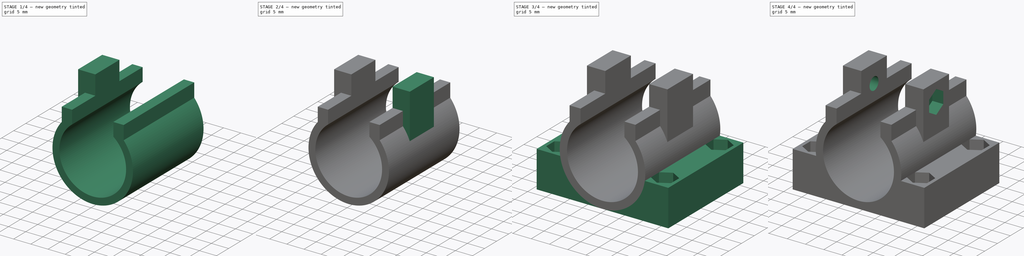
[diagram: build sequence overview — one tinted view per stage of 4, left to right]
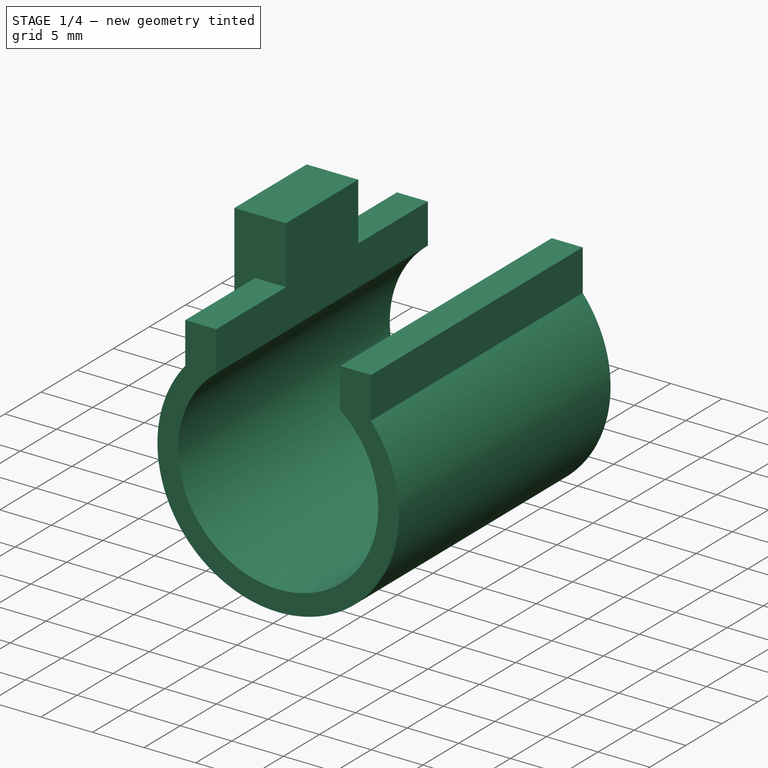
[diagram: stage 1 of 4 — iso view after this stage's code; geometry added in this stage tinted green]
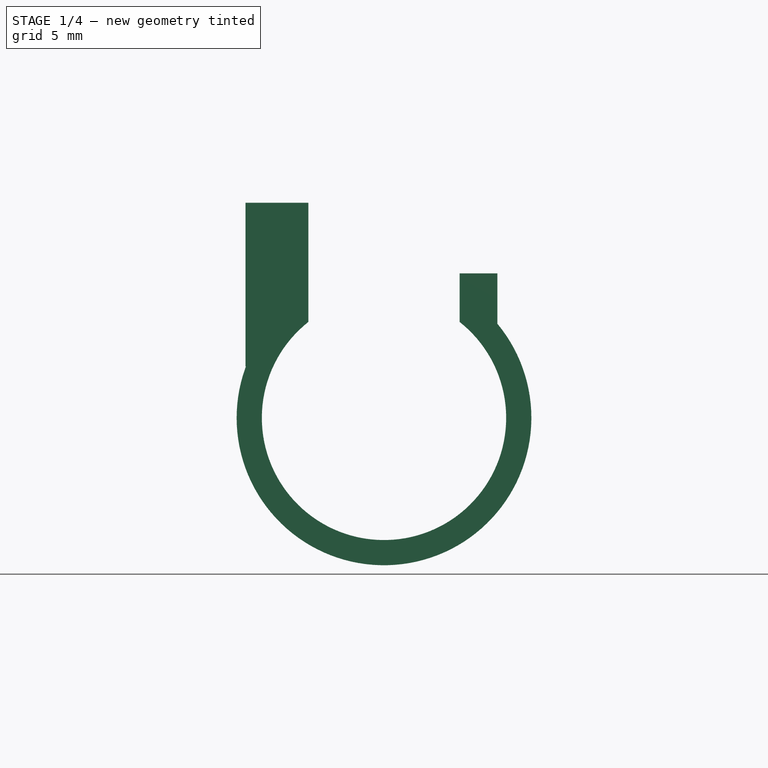
[diagram: stage 1 of 4 — front view after this stage's code; geometry added in this stage tinted green]
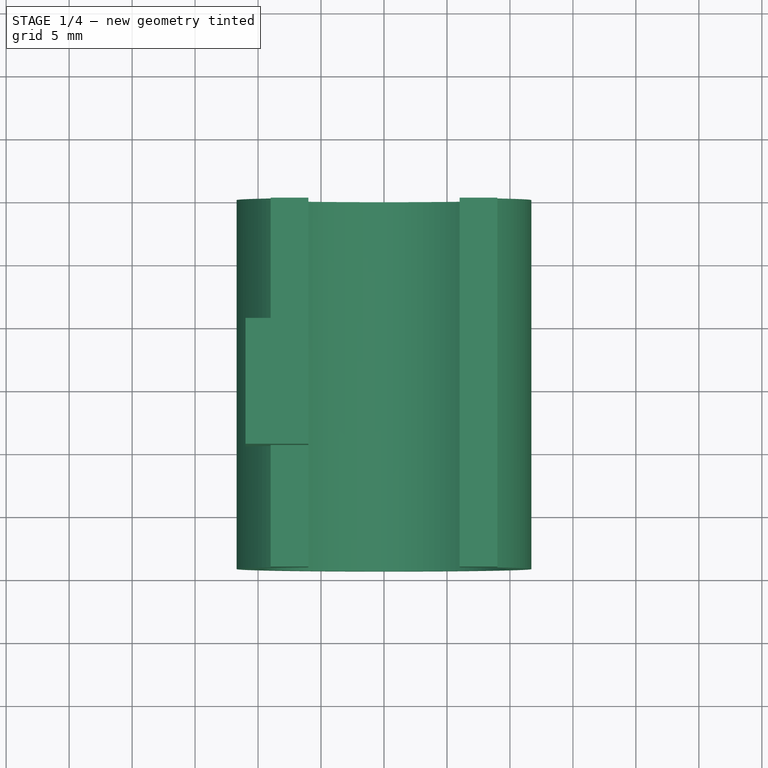
[diagram: stage 1 of 4 — top view after this stage's code; geometry added in this stage tinted green]
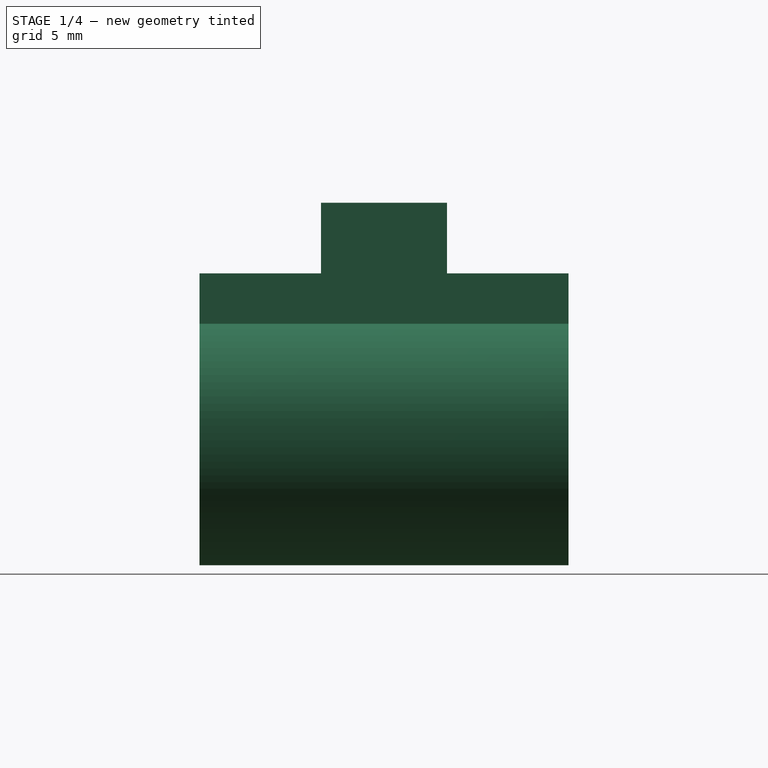
[diagram: stage 1 of 4 — right view after this stage's code; geometry added in this stage tinted green]
FCSTD DOCUMENT  (FreeCAD 0.16RUnknown)
Label: bearing
License: All rights reserved
LicenseURL: http://en.wikipedia.org/wiki/All_rights_reserved
objects: Sketcher::SketchObject×13, PartDesign::Pad×7, PartDesign::Pocket×5
note: 37 computed .brp shape members not serialized (recipe doc carries the construction recipe); baked Part::Feature solids carry a one-line shape summary decoded from their .brp

FEATURE [Sketcher::SketchObject] Sketch
  Placement = pos=(0,0,0) rot=(-1,0,0;4.71239rad)
  sketch-geometry (6):
    g0: Circle CenterX=0 CenterY=0 CenterZ=0 NormalX=0 NormalY=0 NormalZ=1 Radius=9.7
    g1: Circle CenterX=0 CenterY=0 CenterZ=0 NormalX=0 NormalY=0 NormalZ=1 Radius=12.7
    g2: LineSegment StartX=-6.2176 StartY=21.0457 StartZ=0 EndX=4.32726 EndY=21.0457 EndZ=0
    g3: LineSegment StartX=4.32726 StartY=21.0457 StartZ=0 EndX=4.32726 EndY=16.0025 EndZ=0
    g4: LineSegment StartX=4.32726 StartY=16.0025 StartZ=0 EndX=-6.2176 EndY=16.0025 EndZ=0
    g5: LineSegment StartX=-6.2176 StartY=16.0025 StartZ=0 EndX=-6.2176 EndY=21.0457 EndZ=0
  constraints (12):
    c: Coincident(g0,g-1)
    c: Radius(g0) = 9.7
    c: Radius(g1) = 12.7
    c: Coincident(g1,g-1)
    c: Coincident(g2,g3)
    c: Coincident(g3,g4)
    c: Coincident(g4,g5)
    c: Coincident(g5,g2)
    c: Horizontal(g2)
    c: Horizontal(g4)
    c: Vertical(g3)
    c: Vertical(g5)
FEATURE [Sketcher::SketchObject] Sketch001
  Placement = pos=(0,0,0) rot=(1,0,0;1.5708rad)
  sketch-geometry (8):
    g0: ArcOfCircle CenterX=0 CenterY=0 CenterZ=0 NormalX=0 NormalY=0 NormalZ=1 Radius=9.7 StartAngle=2.2377 EndAngle=7.18708
    g1: ArcOfCircle CenterX=0 CenterY=0 CenterZ=0 NormalX=0 NormalY=0 NormalZ=1 Radius=11.7 StartAngle=2.44843 EndAngle=6.97635
    g2: LineSegment StartX=6 StartY=11.476 StartZ=0 EndX=6 EndY=7.62168 EndZ=0
    g3: LineSegment StartX=-6 StartY=7.62168 StartZ=0 EndX=-6 EndY=11.476 EndZ=0
    g4: LineSegment StartX=9 StartY=11.476 StartZ=0 EndX=9 EndY=7.47596 EndZ=0
    g5: LineSegment StartX=-9 StartY=7.47596 StartZ=0 EndX=-9 EndY=11.476 EndZ=0
    g6: LineSegment StartX=-9 StartY=11.476 StartZ=0 EndX=-6 EndY=11.476 EndZ=0
    g7: LineSegment StartX=6 StartY=11.476 StartZ=0 EndX=9 EndY=11.476 EndZ=0
  constraints (23):
    c: Radius(g0) = 9.7
    c: Radius(g1) = 11.7
    c: Coincident(g0,g-1)
    c: Coincident(g1,g-1)
    c: Vertical(g2)
    c: Vertical(g3)
    c: Symmetric(g3,g2,g-2)
    c: DistanceX(g3,g2) = 12
    c: Vertical(g4)
    c: Vertical(g5)
    c: DistanceX(g5,g4) = 18
    c: Symmetric(g5,g4,g-2)
    c: PointOnObject(g5,g1)
    c: DistanceY(g5,g5) = 4
    c: PointOnObject(g1,g5)
    c: Coincident(g6,g5)
    c: Horizontal(g6)
    c: Coincident(g3,g6)
    c: Coincident(g7,g2)
    c: Coincident(g4,g7)
    c: Coincident(g0,g3)
    c: Coincident(g0,g2)
    c: Coincident(g1,g4)
FEATURE [PartDesign::Pad] Pad
  Length = 29.3
  Length2 = 100
  Placement = pos=(0,0,0) rot=(1,0,0;1.5708rad)
  Sketch = -> Sketch001
  Type = 0
FEATURE [Sketcher::SketchObject] Sketch002
  ExternalGeometry = -> [Pad]
  Placement = pos=(-9,0,0) rot=(0.707107,0,-0.707107;3.14159rad)
  Support = -> Pad [Face1]
  sketch-geometry (4):
    g0: LineSegment StartX=-4.07596 StartY=19.65 StartZ=0 EndX=-17.076 EndY=19.65 EndZ=0
    g1: LineSegment StartX=-17.076 StartY=19.65 StartZ=0 EndX=-17.076 EndY=9.65 EndZ=0
    g2: LineSegment StartX=-17.076 StartY=9.65 StartZ=0 EndX=-4.07596 EndY=9.65 EndZ=0
    g3: LineSegment StartX=-4.07596 StartY=9.65 StartZ=0 EndX=-4.07596 EndY=19.65 EndZ=0
  constraints (12):
    c: Coincident(g0,g1)
    c: Coincident(g1,g2)
    c: Coincident(g2,g3)
    c: Coincident(g3,g0)
    c: Horizontal(g0)
    c: Horizontal(g2)
    c: Vertical(g1)
    c: Vertical(g3)
    c: DistanceX(g0,g-3) = 5.6
    c: DistanceX(g1,g2) = 13
    c: DistanceY(g0,g-3) = 9.65
    c: DistanceY(g1,g0) = 10
FEATURE [PartDesign::Pad] Pad001
  Length = 2
  Length2 = 100
  Placement = pos=(0,0,0) rot=(1,0,0;1.5708rad)
  Sketch = -> Sketch002
  Type = 0
FEATURE [Sketcher::SketchObject] Sketch003
  ExternalGeometry = -> [Pad001]
  Placement = pos=(-9,0,0) rot=(0.707107,0,0.707107;3.14159rad)
  Support = -> Pad001 [Face11]
  sketch-geometry (4):
    g0: LineSegment StartX=11.476 StartY=19.65 StartZ=0 EndX=17.076 EndY=19.65 EndZ=0
    g1: LineSegment StartX=17.076 StartY=19.65 StartZ=0 EndX=17.076 EndY=9.65 EndZ=0
    g2: LineSegment StartX=17.076 StartY=9.65 StartZ=0 EndX=11.476 EndY=9.65 EndZ=0
    g3: LineSegment StartX=11.476 StartY=9.65 StartZ=0 EndX=11.476 EndY=19.65 EndZ=0
  constraints (8):
    c: Coincident(g0,g1)
    c: Coincident(g1,g2)
    c: Coincident(g2,g3)
    c: Coincident(g3,g0)
    c: Horizontal(g0)
    c: Horizontal(g2)
    c: Vertical(g1)
    c: Vertical(g3)
FEATURE [PartDesign::Pad] Pad002
  Length = 3
  Length2 = 100
  Placement = pos=(0,0,0) rot=(1,0,0;1.5708rad)
  Sketch = -> Sketch003
  Type = 0
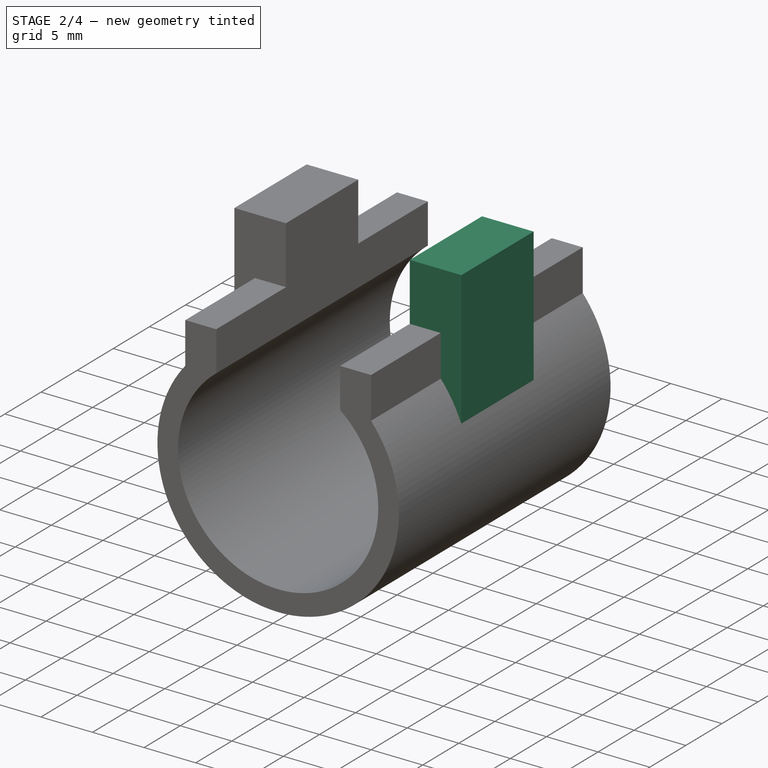
[diagram: stage 2 of 4 — iso view after this stage's code; geometry added in this stage tinted green]
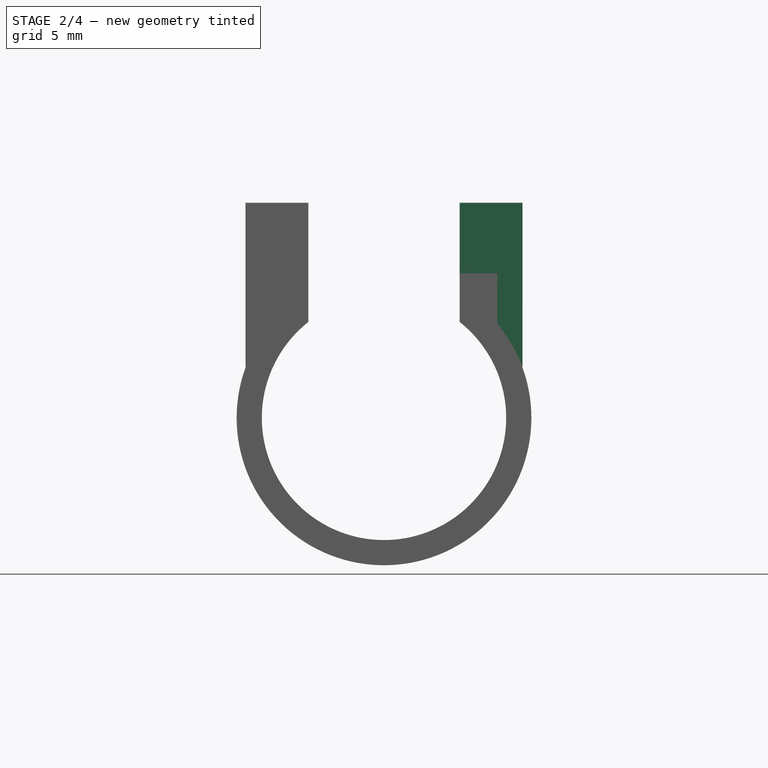
[diagram: stage 2 of 4 — front view after this stage's code; geometry added in this stage tinted green]
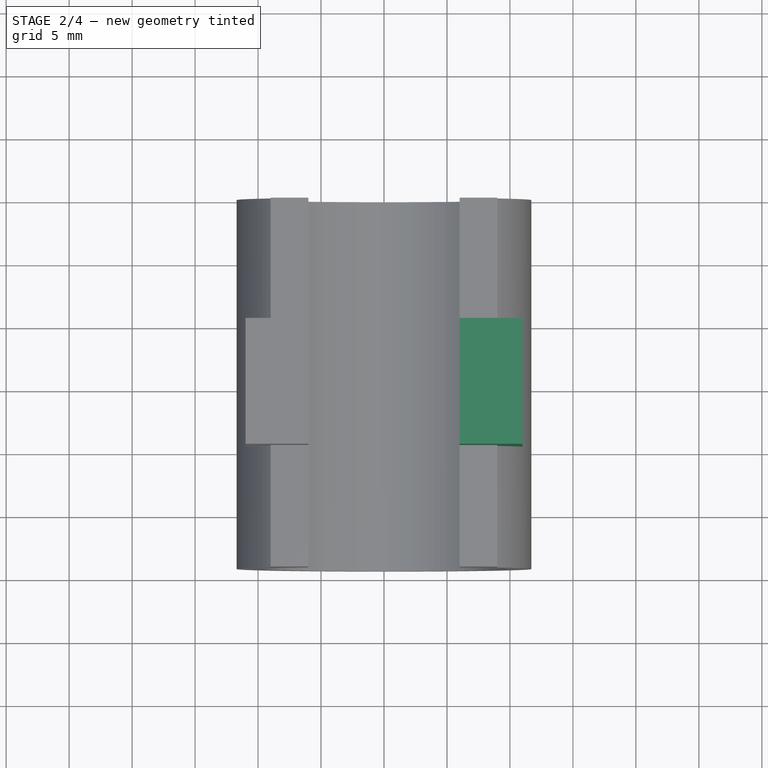
[diagram: stage 2 of 4 — top view after this stage's code; geometry added in this stage tinted green]
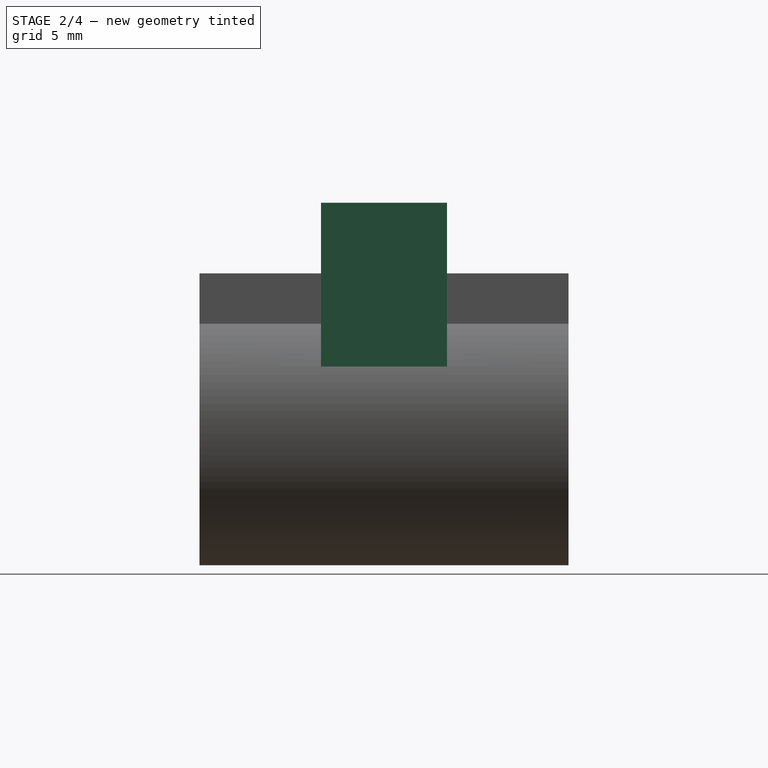
[diagram: stage 2 of 4 — right view after this stage's code; geometry added in this stage tinted green]
FEATURE [Sketcher::SketchObject] Sketch004
  ExternalGeometry = -> [Pad002]
  Placement = pos=(9,0,0) rot=(0.707107,0,0.707107;3.14159rad)
  Support = -> Pad002 [Face8]
  sketch-geometry (4):
    g0: LineSegment StartX=4.07596 StartY=19.65 StartZ=0 EndX=17.076 EndY=19.65 EndZ=0
    g1: LineSegment StartX=17.076 StartY=19.65 StartZ=0 EndX=17.076 EndY=9.65 EndZ=0
    g2: LineSegment StartX=17.076 StartY=9.65 StartZ=0 EndX=4.07596 EndY=9.65 EndZ=0
    g3: LineSegment StartX=4.07596 StartY=9.65 StartZ=0 EndX=4.07596 EndY=19.65 EndZ=0
  constraints (12):
    c: Coincident(g0,g1)
    c: Coincident(g1,g2)
    c: Coincident(g2,g3)
    c: Coincident(g3,g0)
    c: Horizontal(g0)
    c: Horizontal(g2)
    c: Vertical(g1)
    c: Vertical(g3)
    c: DistanceX(g0,g0) = 13
    c: DistanceY(g1,g0) = 10
    c: DistanceX(g-3,g0) = 5.6
    c: DistanceY(g0,g-3) = 9.65
FEATURE [PartDesign::Pad] Pad003
  Length = 2
  Length2 = 100
  Placement = pos=(0,0,0) rot=(1,0,0;1.5708rad)
  Sketch = -> Sketch004
  Type = 0
FEATURE [Sketcher::SketchObject] Sketch005
  ExternalGeometry = -> [Pad003]
  Placement = pos=(9,0,0) rot=(-0.707107,0,0.707107;3.14159rad)
  Support = -> Pad003 [Face16]
  constraints (10):
    c: Coincident(g0,g1)
    c: Coincident(g1,g2)
    c: Coincident(g2,g3)
    c: Coincident(g3,g0)
    c: Horizontal(g0)
    c: Horizontal(g2)
    c: Vertical(g1)
    c: Vertical(g3)
    c: Coincident(g0,g-4)
    c: Coincident(g1,g-3)
FEATURE [PartDesign::Pad] Pad004
  Length = 3
  Length2 = 100
  Placement = pos=(0,0,0) rot=(1,0,0;1.5708rad)
  Sketch = -> Sketch005
  Type = 0
FEATURE [Sketcher::SketchObject] Sketch006
  ExternalGeometry = -> [Pad004]
  Placement = pos=(9,0,0) rot=(-0.707107,0,0.707107;3.14159rad)
  Support = -> Pad004 [Face27]
  sketch-geometry (4):
    g0: LineSegment StartX=-17.076 StartY=19.65 StartZ=0 EndX=-11.476 EndY=19.65 EndZ=0
    g1: LineSegment StartX=-11.476 StartY=19.65 StartZ=0 EndX=-11.476 EndY=9.65 EndZ=0
    g2: LineSegment StartX=-11.476 StartY=9.65 StartZ=0 EndX=-17.076 EndY=9.65 EndZ=0
    g3: LineSegment StartX=-17.076 StartY=9.65 StartZ=0 EndX=-17.076 EndY=19.65 EndZ=0
  constraints (10):
    c: Coincident(g0,g1)
    c: Coincident(g1,g2)
    c: Coincident(g2,g3)
    c: Coincident(g3,g0)
    c: Horizontal(g0)
    c: Horizontal(g2)
    c: Vertical(g1)
    c: Vertical(g3)
    c: Coincident(g1,g-4)
    c: Coincident(g0,g-3)
FEATURE [PartDesign::Pad] Pad005
  Length = 3
  Length2 = 100
  Placement = pos=(0,0,0) rot=(1,0,0;1.5708rad)
  Sketch = -> Sketch006
  Type = 0
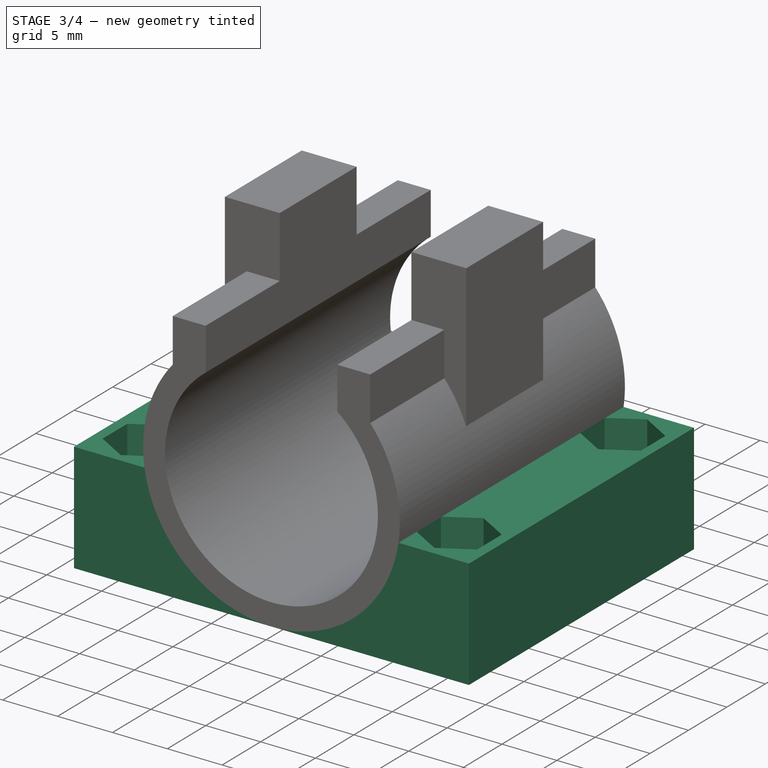
[diagram: stage 3 of 4 — iso view after this stage's code; geometry added in this stage tinted green]
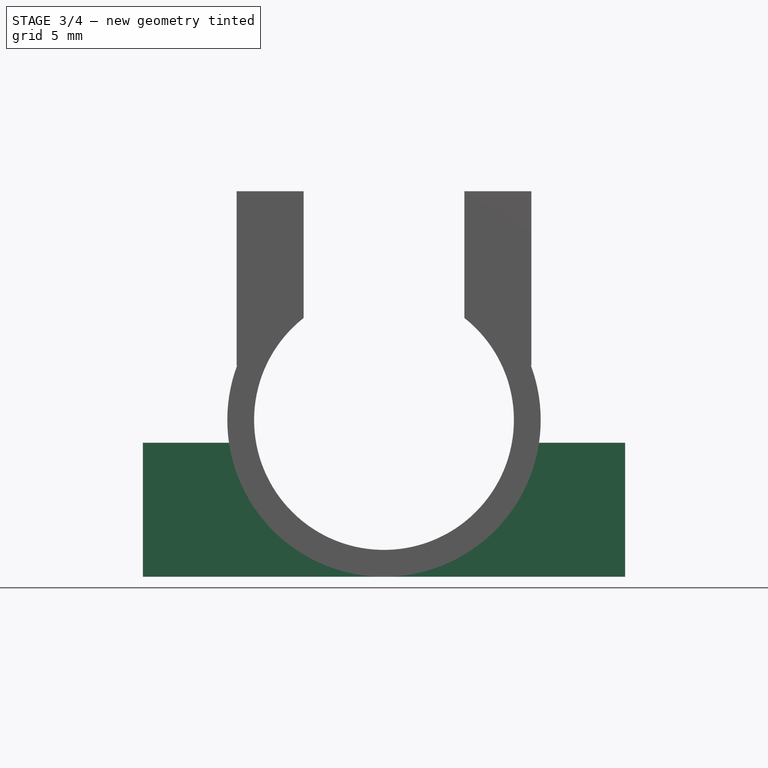
[diagram: stage 3 of 4 — front view after this stage's code; geometry added in this stage tinted green]
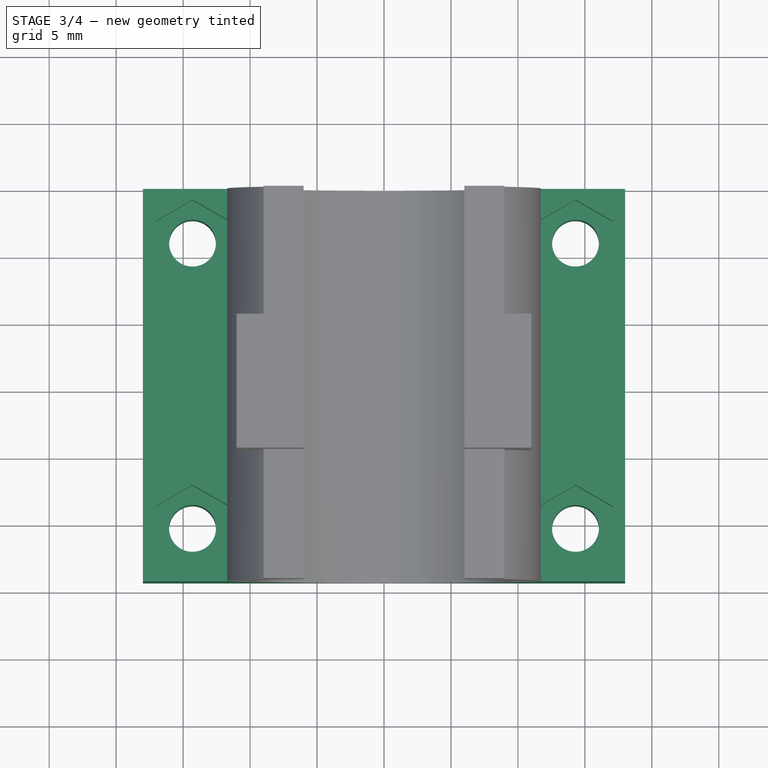
[diagram: stage 3 of 4 — top view after this stage's code; geometry added in this stage tinted green]
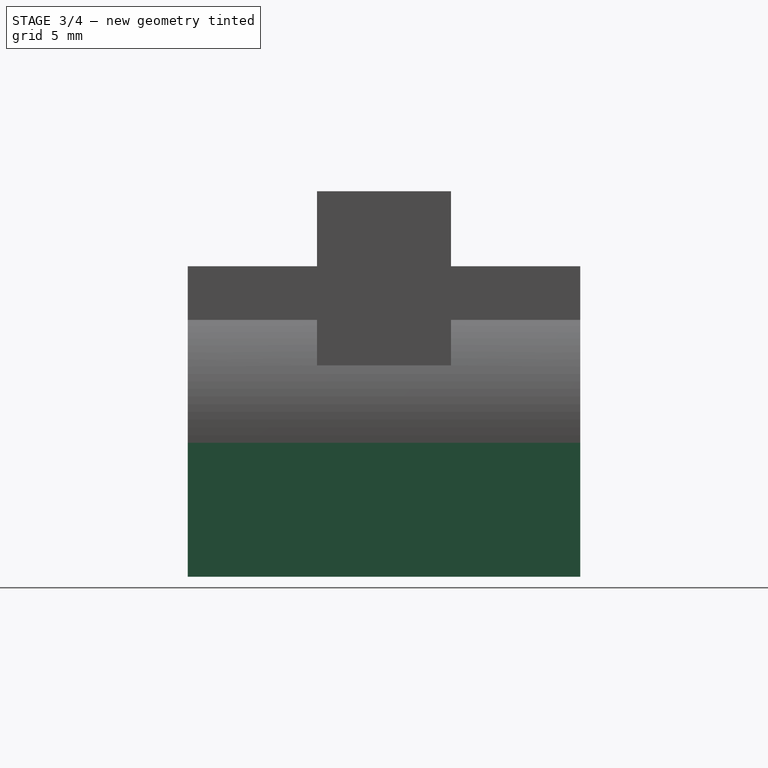
[diagram: stage 3 of 4 — right view after this stage's code; geometry added in this stage tinted green]
FEATURE [Sketcher::SketchObject] Sketch007
  ExternalGeometry = -> [Pad005]
  Placement = pos=(0,0,0) rot=(-1,0,0;1.5708rad)
  Support = -> Pad005 [Face1]
  sketch-geometry (6):
    g0: LineSegment StartX=-18 StartY=11.7 StartZ=0 EndX=18 EndY=11.7 EndZ=0
    g1: LineSegment StartX=-18 StartY=11.7 StartZ=0 EndX=-18 EndY=1.7 EndZ=0
    g2: LineSegment StartX=18 StartY=11.7 StartZ=0 EndX=18 EndY=1.7 EndZ=0
    g3: ArcOfCircle CenterX=0.003618 CenterY=2.53405e-05 CenterZ=0 NormalX=0 NormalY=0 NormalZ=1 Radius=10.7488 StartAngle=0.158822 EndAngle=2.98277
    g4: LineSegment StartX=-18 StartY=1.7 StartZ=0 EndX=-10.6099 EndY=1.7 EndZ=0
    g5: LineSegment StartX=10.6171 StartY=1.7 StartZ=0 EndX=18 EndY=1.7 EndZ=0
  constraints (16):
    c: Horizontal(g0)
    c: Vertical(g1)
    c: Coincident(g2,g0)
    c: Vertical(g2)
    c: DistanceX(g1,g0) = 36
    c: Coincident(g0,g1)
    c: Tangent(g0,g-3)
    c: Symmetric(g0,g0,g-2)
    c: DistanceY(g1,g0) = 10
    c: DistanceY(g2,g0) = 10
    c: DistanceY(g3,g0) = 10
    c: DistanceY(g3,g0) = 10
    c: Coincident(g4,g1)
    c: Coincident(g4,g3)
    c: Coincident(g5,g3)
    c: Coincident(g5,g2)
FEATURE [PartDesign::Pad] Pad006
  Length = 29.3
  Length2 = 100
  Placement = pos=(0,0,0) rot=(1,0,0;1.5708rad)
  Reversed = true
  Sketch = -> Sketch007
  Type = 0
FEATURE [Sketcher::SketchObject] Sketch008
  ExternalGeometry = -> [Pad006]
  Placement = pos=(0,0,-1.7) rot=(0,0,1;3.14159rad)
  Support = -> Pad006 [Face18]
  sketch-geometry (4):
    g0: Circle CenterX=14.2963 CenterY=25.3 CenterZ=0 NormalX=0 NormalY=0 NormalZ=1 Radius=1.75
    g1: Circle CenterX=-14.2963 CenterY=25.3 CenterZ=0 NormalX=0 NormalY=0 NormalZ=1 Radius=1.75
    g2: Circle CenterX=-14.2963 CenterY=4 CenterZ=0 NormalX=0 NormalY=0 NormalZ=1 Radius=1.75
    g3: Circle CenterX=14.2963 CenterY=4 CenterZ=0 NormalX=0 NormalY=0 NormalZ=1 Radius=1.75
  constraints (12):
    c: DistanceY(g0,g-4) = 4
    c: DistanceX(g0,g-4) = 3.70367
    c: DistanceX(g3,g-4) = 3.70367
    c: DistanceX(g-6,g2) = 3.70367
    c: DistanceX(g-5,g1) = 3.70367
    c: Radius(g0) = 1.75
    c: Equal(g0,g3)
    c: Equal(g0,g2)
    c: Equal(g0,g1)
    c: DistanceY(g1,g-5) = 4
    c: DistanceY(g-6,g2) = 4
    c: DistanceY(g-4,g3) = 4
FEATURE [PartDesign::Pocket] Pocket
  Length = 10
  Placement = pos=(0,0,0) rot=(1,0,0;1.5708rad)
  Sketch = -> Sketch008
  Type = 0
FEATURE [Sketcher::SketchObject] Sketch009
  ExternalGeometry = -> [Pocket]
  Placement = pos=(0,0,-1.7) rot=(0,0,1;3.14159rad)
  Support = -> Pocket [Face21]
  sketch-geometry (28):
    g0: LineSegment StartX=14.2963 StartY=22.1 StartZ=0 EndX=17.0676 EndY=23.7 EndZ=0
    g1: LineSegment StartX=17.0676 StartY=23.7 StartZ=0 EndX=17.0676 EndY=26.9 EndZ=0
    g2: LineSegment StartX=17.0676 StartY=26.9 StartZ=0 EndX=14.2963 EndY=28.5 EndZ=0
    g3: LineSegment StartX=14.2963 StartY=28.5 StartZ=0 EndX=11.525 EndY=26.9 EndZ=0
    g4: LineSegment StartX=11.525 StartY=26.9 StartZ=0 EndX=11.525 EndY=23.7 EndZ=0
    g5: LineSegment StartX=11.525 StartY=23.7 StartZ=0 EndX=14.2963 EndY=22.1 EndZ=0
    g6: Circle [constr] CenterX=14.2963 CenterY=25.3 CenterZ=0 NormalX=0 NormalY=0 NormalZ=1 Radius=3.2
    g7: LineSegment StartX=17.0676 StartY=2.4 StartZ=0 EndX=17.0676 EndY=5.6 EndZ=0
    g8: LineSegment StartX=17.0676 StartY=5.6 StartZ=0 EndX=14.2963 EndY=7.2 EndZ=0
    g9: LineSegment StartX=14.2963 StartY=7.2 StartZ=0 EndX=11.525 EndY=5.6 EndZ=0
    g10: LineSegment StartX=11.525 StartY=5.6 StartZ=0 EndX=11.525 EndY=2.4 EndZ=0
    g11: LineSegment StartX=11.525 StartY=2.4 StartZ=0 EndX=14.2963 EndY=0.8 EndZ=0
    g12: LineSegment StartX=14.2963 StartY=0.8 StartZ=0 EndX=17.0676 EndY=2.4 EndZ=0
    g13: Circle [constr] CenterX=14.2963 CenterY=4 CenterZ=0 NormalX=0 NormalY=0 NormalZ=1 Radius=3.2
    g14: LineSegment StartX=-17.0676 StartY=23.7 StartZ=0 EndX=-14.2963 EndY=22.1 EndZ=0
    g15: LineSegment StartX=-14.2963 StartY=22.1 StartZ=0 EndX=-11.525 EndY=23.7 EndZ=0
    g16: LineSegment StartX=-11.525 StartY=23.7 StartZ=0 EndX=-11.525 EndY=26.9 EndZ=0
    g17: LineSegment StartX=-11.525 StartY=26.9 StartZ=0 EndX=-14.2963 EndY=28.5 EndZ=0
    g18: LineSegment StartX=-14.2963 StartY=28.5 StartZ=0 EndX=-17.0676 EndY=26.9 EndZ=0
    g19: LineSegment StartX=-17.0676 StartY=26.9 StartZ=0 EndX=-17.0676 EndY=23.7 EndZ=0
    g20: Circle [constr] CenterX=-14.2963 CenterY=25.3 CenterZ=0 NormalX=0 NormalY=0 NormalZ=1 Radius=3.2
    g21: LineSegment StartX=-14.2963 StartY=0.8 StartZ=0 EndX=-11.525 EndY=2.4 EndZ=0
    g22: LineSegment StartX=-11.525 StartY=2.4 StartZ=0 EndX=-11.525 EndY=5.6 EndZ=0
    g23: LineSegment StartX=-11.525 StartY=5.6 StartZ=0 EndX=-14.2963 EndY=7.2 EndZ=0
    g24: LineSegment StartX=-14.2963 StartY=7.2 StartZ=0 EndX=-17.0676 EndY=5.6 EndZ=0
    g25: LineSegment StartX=-17.0676 StartY=5.6 StartZ=0 EndX=-17.0676 EndY=2.4 EndZ=0
    g26: LineSegment StartX=-17.0676 StartY=2.4 StartZ=0 EndX=-14.2963 EndY=0.8 EndZ=0
    g27: Circle [constr] CenterX=-14.2963 CenterY=4 CenterZ=0 NormalX=0 NormalY=0 NormalZ=1 Radius=3.2
  constraints (64):
    c: Coincident(g0,g1)
    c: Coincident(g1,g2)
    c: Coincident(g2,g3)
    c: Coincident(g3,g4)
    c: Coincident(g4,g5)
    c: Coincident(g5,g0)
    c: Equal(g0, g1-g5) x5
    c: PointOnObject(g0,g6)
    c: PointOnObject(g1,g6)
    c: PointOnObject(g2,g6)
    c: PointOnObject(g3,g6)
    c: PointOnObject(g4,g6)
    c: PointOnObject(g5,g6)
    c: Coincident(g7,g8)
    c: Coincident(g8,g9)
    c: Coincident(g9,g10)
    c: Coincident(g10,g11)
    c: Coincident(g11,g12)
    c: Coincident(g12,g7)
    c: Equal(g7, g8-g12) x5
    c: PointOnObject(g7,g13)
    c: PointOnObject(g8,g13)
    c: PointOnObject(g9,g13)
    c: PointOnObject(g10,g13)
    c: PointOnObject(g11,g13)
    c: PointOnObject(g12,g13)
    c: Radius(g6) = 3.2
    c: Equal(g6,g13)
    c: Coincident(g6,g-6)
    c: Coincident(g13,g-5)
    c: Parallel(g10,g-2)
    c: Parallel(g4,g-2)
    c: Coincident(g14,g15)
    c: Coincident(g15,g16)
    c: Coincident(g16,g17)
    c: Coincident(g17,g18)
    c: Coincident(g18,g19)
    c: Coincident(g19,g14)
    c: Equal(g14, g15-g19) x5
    c: PointOnObject(g14,g20)
    c: PointOnObject(g15,g20)
    c: PointOnObject(g16,g20)
    c: PointOnObject(g17,g20)
    c: PointOnObject(g18,g20)
    c: PointOnObject(g19,g20)
    c: Coincident(g21,g22)
    c: Coincident(g22,g23)
    c: Coincident(g23,g24)
    c: Coincident(g24,g25)
    c: Coincident(g25,g26)
    c: Coincident(g26,g21)
    c: Equal(g21, g22-g26) x5
    c: PointOnObject(g21,g27)
    c: PointOnObject(g22,g27)
    c: PointOnObject(g23,g27)
    c: PointOnObject(g24,g27)
    c: PointOnObject(g25,g27)
    c: PointOnObject(g26,g27)
    c: Radius(g20) = 3.2
    c: Equal(g20,g27)
    c: Coincident(g20,g-3)
    c: Parallel(g16,g-2)
    c: Coincident(g27,g-4)
    c: Parallel(g22,g-2)
FEATURE [PartDesign::Pocket] Pocket001
  Length = 3
  Placement = pos=(0,0,0) rot=(1,0,0;1.5708rad)
  Sketch = -> Sketch009
  Type = 0
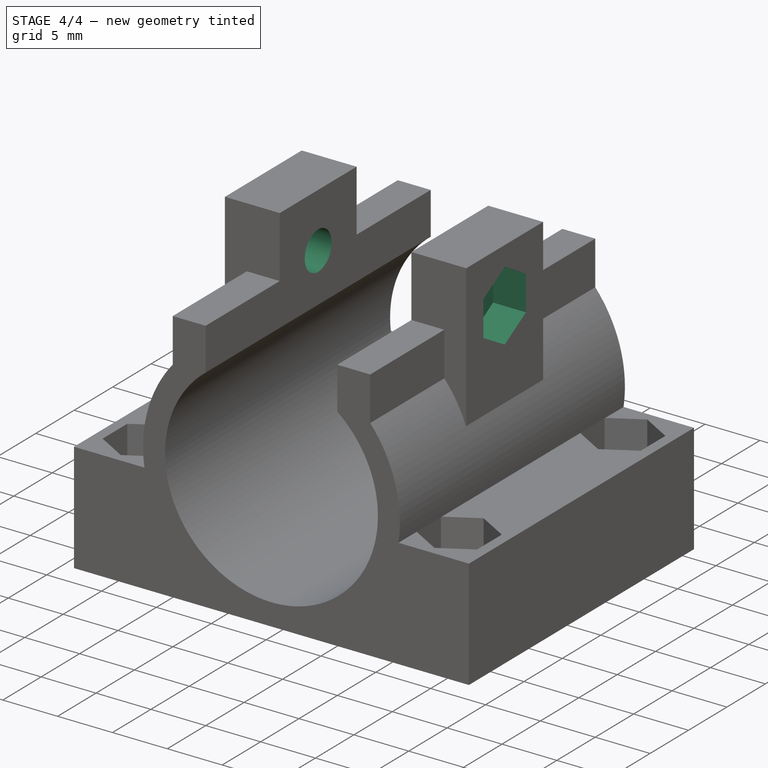
[diagram: stage 4 of 4 — iso view after this stage's code; geometry added in this stage tinted green]
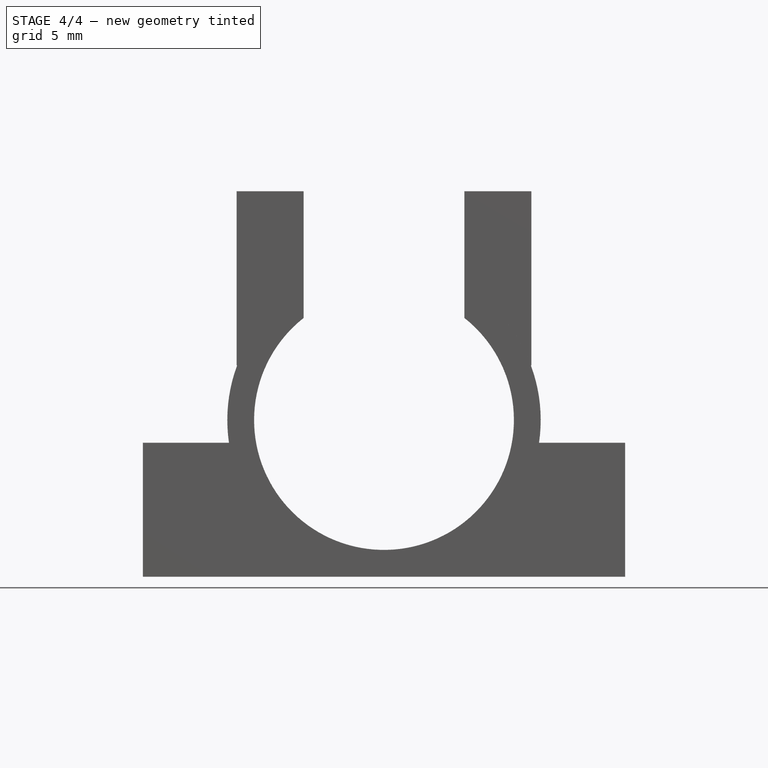
[diagram: stage 4 of 4 — front view after this stage's code; geometry added in this stage tinted green]
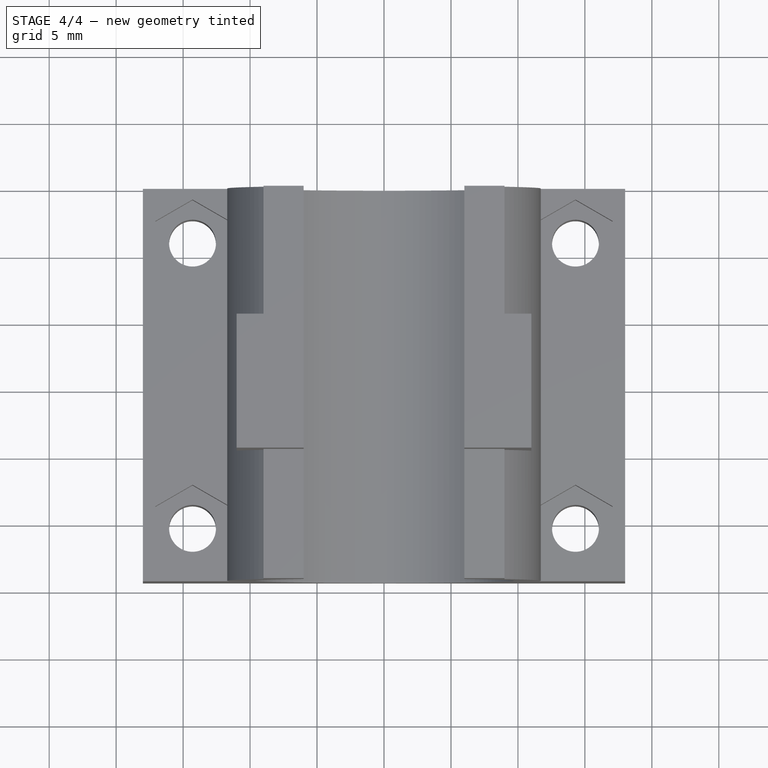
[diagram: stage 4 of 4 — top view after this stage's code; geometry added in this stage tinted green]
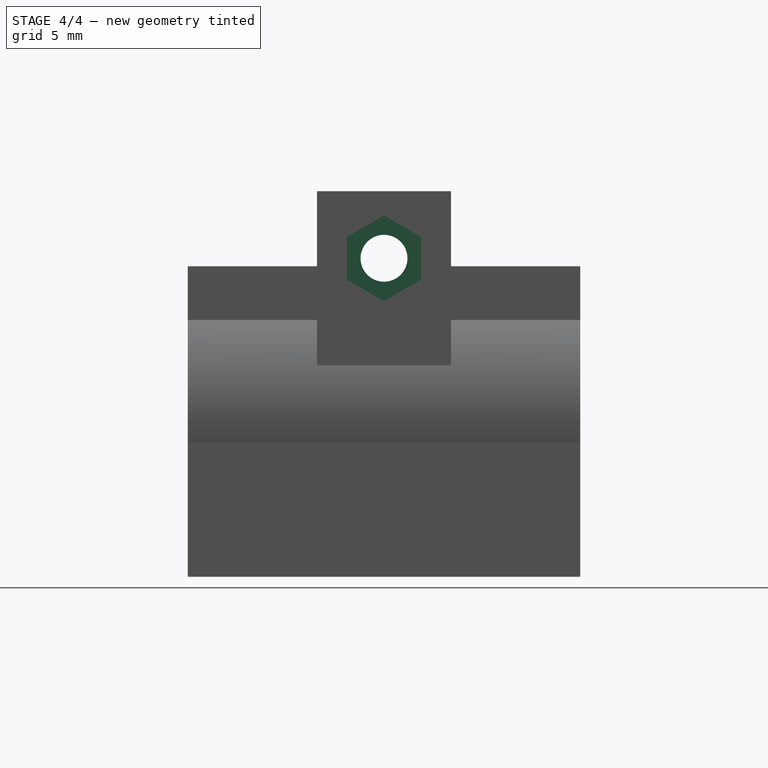
[diagram: stage 4 of 4 — right view after this stage's code; geometry added in this stage tinted green]
FEATURE [Sketcher::SketchObject] Sketch010
  ExternalGeometry = -> [Pocket001]
  Placement = pos=(-11,0,0) rot=(0.707107,0,-0.707107;3.14159rad)
  Support = -> Pocket001 [Face67]
  sketch-geometry (1):
    g0: Circle CenterX=-12.076 CenterY=14.65 CenterZ=0 NormalX=0 NormalY=0 NormalZ=1 Radius=1.75
  constraints (3):
    c: Radius(g0) = 1.75
    c: DistanceX(g-3,g0) = 5
    c: DistanceY(g0,g-3) = 5
FEATURE [PartDesign::Pocket] Pocket002
  Length = 5
  Placement = pos=(0,0,0) rot=(1,0,0;1.5708rad)
  Sketch = -> Sketch010
  Type = 1
FEATURE [Sketcher::SketchObject] Sketch011
  ExternalGeometry = -> [Pocket002]
  Placement = pos=(-11,0,0) rot=(0.707107,0,-0.707107;3.14159rad)
  Support = -> Pocket002 [Face69]
  sketch-geometry (1):
    g0: Circle CenterX=-12.076 CenterY=14.65 CenterZ=0 NormalX=0 NormalY=0 NormalZ=1 Radius=2.8
  constraints (2):
    c: Radius(g0) = 2.8
    c: Coincident(g0,g-3)
FEATURE [PartDesign::Pocket] Pocket003
  Length = 3
  Placement = pos=(0,0,0) rot=(1,0,0;1.5708rad)
  Sketch = -> Sketch011
  Type = 0
FEATURE [Sketcher::SketchObject] Sketch012
  ExternalGeometry = -> [Pocket003]
  Placement = pos=(11,0,0) rot=(0.707107,0,0.707107;3.14159rad)
  Support = -> Pocket003 [Face22]
  sketch-geometry (7):
    g0: LineSegment StartX=13.676 StartY=11.8787 StartZ=0 EndX=15.276 EndY=14.65 EndZ=0
    g1: LineSegment StartX=15.276 StartY=14.65 StartZ=0 EndX=13.676 EndY=17.4213 EndZ=0
    g2: LineSegment StartX=13.676 StartY=17.4213 StartZ=0 EndX=10.476 EndY=17.4213 EndZ=0
    g3: LineSegment StartX=10.476 StartY=17.4213 StartZ=0 EndX=8.87596 EndY=14.65 EndZ=0
    g4: LineSegment StartX=8.87596 StartY=14.65 StartZ=0 EndX=10.476 EndY=11.8787 EndZ=0
    g5: LineSegment StartX=10.476 StartY=11.8787 StartZ=0 EndX=13.676 EndY=11.8787 EndZ=0
    g6: Circle [constr] CenterX=12.076 CenterY=14.65 CenterZ=0 NormalX=0 NormalY=0 NormalZ=1 Radius=3.2
  constraints (16):
    c: Coincident(g0,g1)
    c: Coincident(g1,g2)
    c: Coincident(g2,g3)
    c: Coincident(g3,g4)
    c: Coincident(g4,g5)
    c: Coincident(g5,g0)
    c: Equal(g0, g1-g5) x5
    c: PointOnObject(g0,g6)
    c: PointOnObject(g1,g6)
    c: PointOnObject(g2,g6)
    c: PointOnObject(g3,g6)
    c: PointOnObject(g4,g6)
    c: PointOnObject(g5,g6)
    c: Radius(g6) = 3.2
    c: Coincident(g6,g-3)
    c: Parallel(g5,g-1)
FEATURE [PartDesign::Pocket] Pocket004
  Length = 3
  Placement = pos=(0,0,0) rot=(1,0,0;1.5708rad)
  Sketch = -> Sketch012
  Type = 0
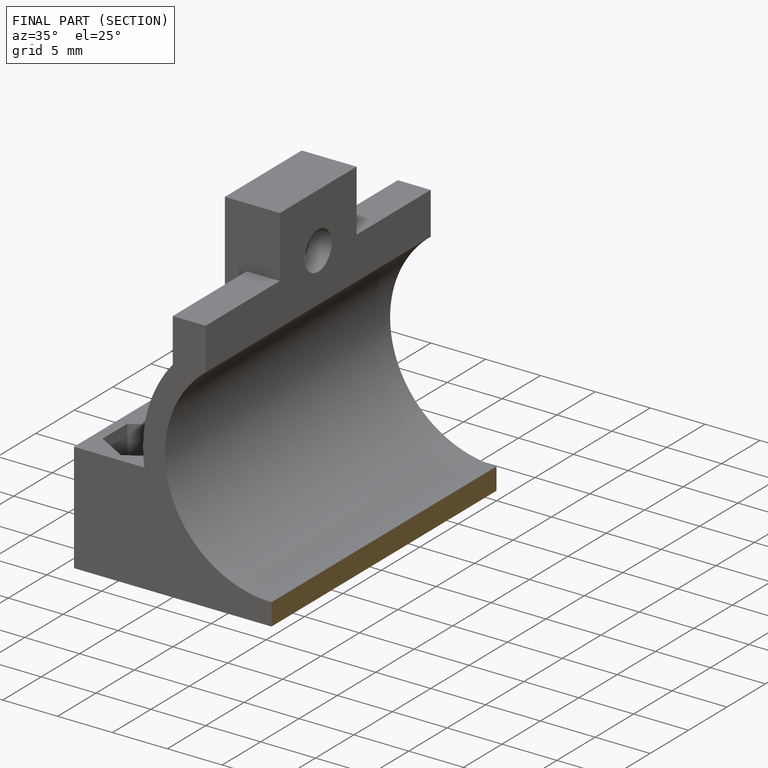
[diagram: finished part — half-section view (interior)]
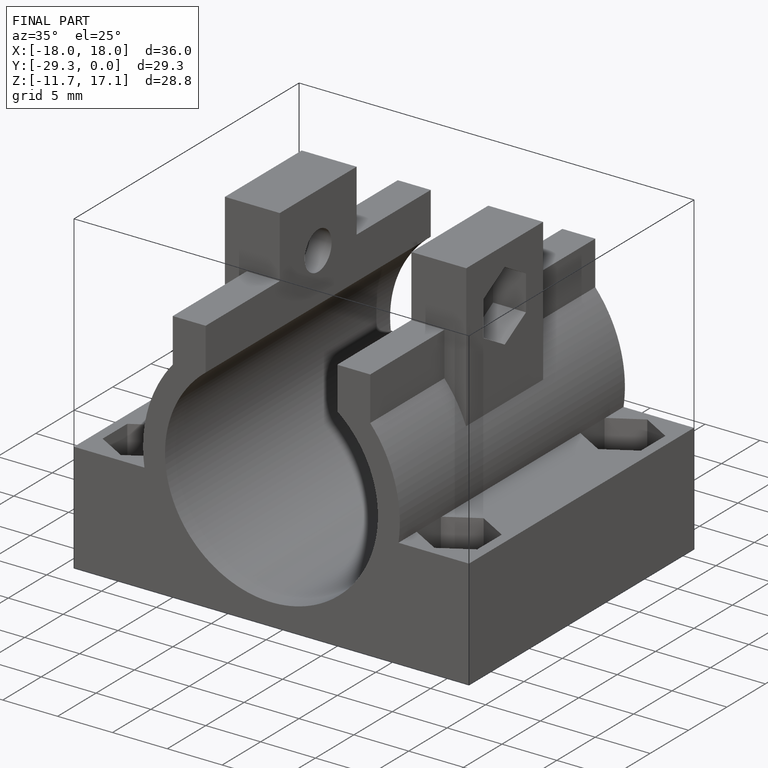
[diagram: finished part — iso view with bounding-box wireframe]
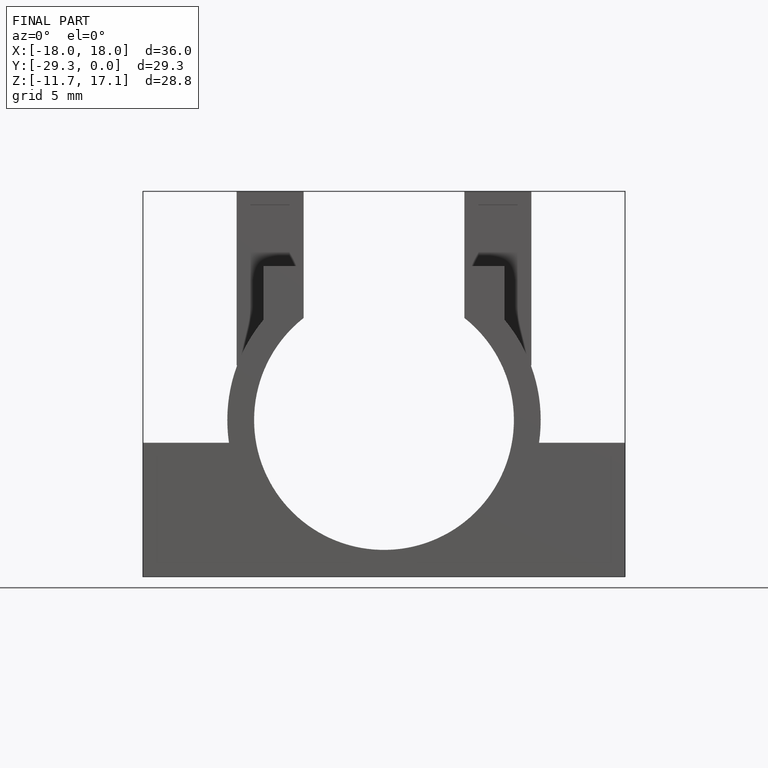
[diagram: finished part — front view with bounding-box wireframe]
